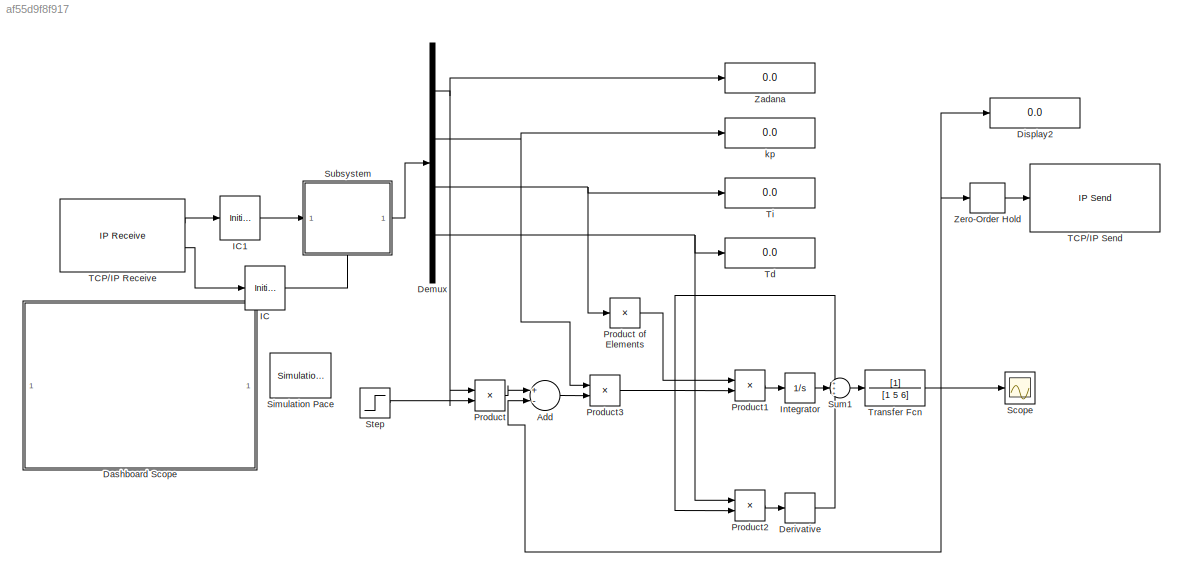
MODEL slx_af55d9f8f917
KIND model
CONFIG AbsTol = auto
CONFIG EnableMultiTasking = off
CONFIG FixedStep = 0.1
CONFIG MaxStep = auto
CONFIG MinStep = auto
CONFIG RelTol = 1e-3
CONFIG SampleTimeConstraint = Unconstrained
CONFIG Solver = FixedStepAuto
CONFIG SolverName = FixedStepAuto
CONFIG StartTime = 0.0
CONFIG StopTime = inf
BLOCK [Sum] Add
  InputSameDT = off
  Inputs = +-
  OutDataTypeStr = Inherit: Inherit via internal rule
  Ports = [2, 1]
  SaturateOnIntegerOverflow = off
BLOCK [SubSystem] Dashboard Scope
  DialogController = hmiCreateDDGDialog
  IsWebBlock = on
  MaskHideContents = on
  Ports = []
  RequestExecContextInheritance = off
  Variant = off
BLOCK [Demux] Demux
  DisplayOption = bar
  Ports = [1, 4]
BLOCK [Derivative] Derivative
BLOCK [Display] Display2
  Decimation = 1
  Ports = [1]
BLOCK [InitialCondition] IC
BLOCK [InitialCondition] IC1
  Value = [0 1 1 0]
BLOCK [Integrator] Integrator
  Ports = [1, 1]
BLOCK [Product] Product
  InputSameDT = off
  OutDataTypeStr = Inherit: Inherit via internal rule
  Ports = [2, 1]
  RndMeth = Floor
  SaturateOnIntegerOverflow = off
BLOCK [Product] Product of Elements
  InputSameDT = off
  Inputs = /
  OutDataTypeStr = Inherit: Inherit via internal rule
  Ports = [1, 1]
  RndMeth = Floor
  SaturateOnIntegerOverflow = off
BLOCK [Product] Product1
  InputSameDT = off
  OutDataTypeStr = Inherit: Inherit via internal rule
  Ports = [2, 1]
  RndMeth = Floor
  SaturateOnIntegerOverflow = off
BLOCK [Product] Product2
  InputSameDT = off
  OutDataTypeStr = Inherit: Inherit via internal rule
  Ports = [2, 1]
  RndMeth = Floor
  SaturateOnIntegerOverflow = off
BLOCK [Product] Product3
  InputSameDT = off
  OutDataTypeStr = Inherit: Inherit via internal rule
  Ports = [2, 1]
  RndMeth = Floor
  SaturateOnIntegerOverflow = off
BLOCK [Scope] Scope
  NumInputPorts = 1
  Ports = [1]
  ScopeSpecificationString = Simulink.scopes.TimeScopeBlockCfg('CurrentConfiguration', extmgr.ConfigurationSet(extmgr.Configuration('Core','General UI',true),extmgr.Configuration('Core','Source UI',true),extmgr.Configuration('Sources','WiredSimulink',true),extmgr.Configuration('Visuals','Time Domain',true,'SerializedDisplays',{struct('MinYLimReal','-0.12502','MaxYLimReal','1.12518','YLabelReal','','MinYLimMag','0.00000','MaxY...<+1394ch>
BLOCK [Reference] Simulation Pace  REF=aerolibanimutils/Simulation Pace
  AttributesFormatString = %<SleepMode>\n%<SimulationPace> sec/sec
  Ports = []
  SourceBlock = aerolibanimutils/Simulation Pace
  SourceType = Simulation Pace
BLOCK [Step] Step
  SampleTime = 0
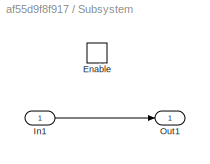
BLOCK [SubSystem] Subsystem
  Ports = [1, 1, 1]
  RequestExecContextInheritance = off
  Variant = off
BLOCK [EnablePort] Subsystem/Enable
  Ports = []
BLOCK [Inport] Subsystem/In1
  IconDisplay = Port number
BLOCK [Outport] Subsystem/Out1
  IconDisplay = Port number
BLOCK [Sum] Sum1
  IconShape = round
  InputSameDT = off
  Inputs = +++
  OutDataTypeStr = Inherit: Inherit via internal rule
  Ports = [3, 1]
  SaturateOnIntegerOverflow = off
BLOCK [Reference] TCP//IP Receive  REF=instrumentlib/TCP//IP Receive
  Ports = [0, 2]
  SourceBlock = instrumentlib/TCP//IP Receive
  SourceType = TCP/IP Receive
BLOCK [Reference] TCP//IP Send  REF=instrumentlib/TCP//IP Send
  Ports = [1]
  SourceBlock = instrumentlib/TCP//IP Send
  SourceType = TCP/IP Send
BLOCK [Display] Td
  Decimation = 1
  Ports = [1]
BLOCK [Display] Ti
  Decimation = 1
  Ports = [1]
BLOCK [TransferFcn] Transfer Fcn
  Denominator = [1 5 6]
BLOCK [Display] Zadana
  Decimation = 1
  Ports = [1]
BLOCK [ZeroOrderHold] Zero-Order Hold
  SampleTime = 0.1
BLOCK [Display] kp
  Decimation = 1
  Ports = [1]
LINE Add:1 -> Product3:2
NET Demux:1 -> Product:1, Zadana:1
NET Demux:2 -> Product3:1, kp:1
NET Demux:3 -> Product of Elements:1, Ti:1
NET Demux:4 -> Product2:1, Td:1
LINE Derivative:1 -> Sum1:3
LINE IC1:1 -> Subsystem:1
LINE IC:1 -> Subsystem:enable
LINE Integrator:1 -> Sum1:2
LINE Product of Elements:1 -> Product1:1
LINE Product1:1 -> Integrator:1
LINE Product2:1 -> Derivative:1
NET Product3:1 -> Product1:2, Product2:2, Sum1:1
LINE Product:1 -> Add:1
LINE Step:1 -> Product:2
LINE Subsystem/In1:1 -> Subsystem/Out1:1
LINE Subsystem:1 -> Demux:1
LINE Sum1:1 -> Transfer Fcn:1
LINE TCP//IP Receive:1 -> IC1:1
LINE TCP//IP Receive:2 -> IC:1
NET Transfer Fcn:1 -> Add:2, Display2:1, Scope:1, Zero-Order Hold:1
LINE Zero-Order Hold:1 -> TCP//IP Send:1
note: NET lines group one-source signal fan-out (src -> all destinations, sorted); 1:1 wires keep LINE
